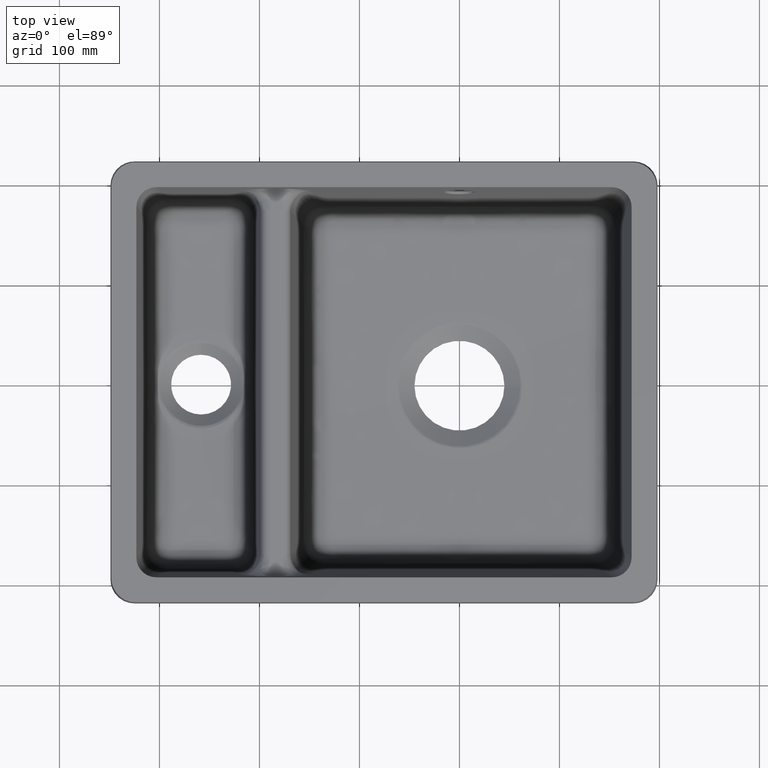
[diagram: clean part render]
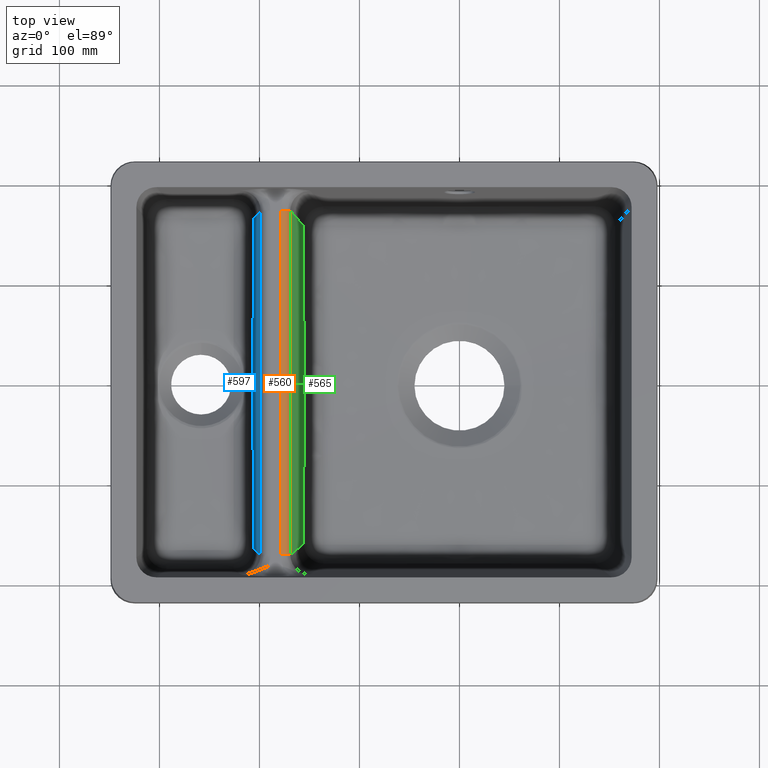
[diagram: same view with three faces highlighted in distinct colors, each labeled with its STEP entity id]
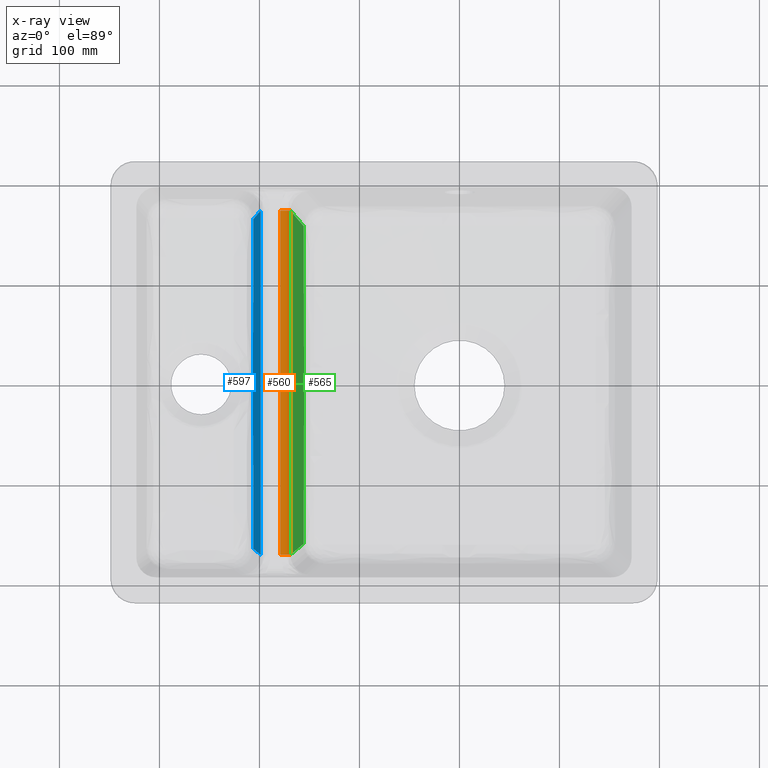
[diagram: x-ray of the same camera — body ghosted, the three highlighted faces saturated]
A machine part, top view with three faces highlighted in distinct colors.
The next image is the same camera in x-ray (body ghosted, the three faces saturated) — at least one of them is partly hidden behind the body in this view.
Their STEP definitions:

[orange] entity #560 — the highlighted cylindrical surface (edge-blend (fillet) strip) has radius 10 mm, axis along (-0, 1, 0).
#163=CYLINDRICAL_SURFACE('',#3065,10.);
#267=FACE_OUTER_BOUND('',#832,.T.);
#432=CIRCLE('',#3063,10.);
#433=CIRCLE('',#3064,10.);
#560=ADVANCED_FACE('',(#267),#163,.T.);
#832=EDGE_LOOP('',(#1576,#1577,#1578,#1579));
#1576=ORIENTED_EDGE('',*,*,#2530,.T.);
#1577=ORIENTED_EDGE('',*,*,#2531,.F.);
#1578=ORIENTED_EDGE('',*,*,#2529,.F.);
#1579=ORIENTED_EDGE('',*,*,#2532,.F.);
#2184=VERTEX_POINT('',#6945);
#2185=VERTEX_POINT('',#6964);
#2186=VERTEX_POINT('',#6997);
#2187=VERTEX_POINT('',#6998);
#2529=EDGE_CURVE('',#2185,#2184,#432,.T.);
#2530=EDGE_CURVE('',#2186,#2187,#433,.T.);
#2531=EDGE_CURVE('',#2184,#2187,#2744,.T.);
#2532=EDGE_CURVE('',#2186,#2185,#2745,.T.);
#2744=LINE('',#6999,#2845);
#2745=LINE('',#7000,#2846);
#2845=VECTOR('',#3555,1.);
#2846=VECTOR('',#3556,1.);
#3063=AXIS2_PLACEMENT_3D('',#6965,#3551,#3552);
#3064=AXIS2_PLACEMENT_3D('',#6996,#3553,#3554);
#3065=AXIS2_PLACEMENT_3D('',#7001,#3557,#3558);
#3551=DIRECTION('',(1.00279731386977E-16,-1.,-9.54097911787244E-16));
#3552=DIRECTION('',(0.,0.,-1.));
#3553=DIRECTION('',(8.32841762506067E-17,-1.,-7.92396006117978E-16));
#3554=DIRECTION('',(0.,0.,1.));
#3555=DIRECTION('',(-8.32841762506067E-17,1.,7.92396006117978E-16));
#3556=DIRECTION('',(8.32841762506067E-17,-1.,-7.92396006117978E-16));
#3557=DIRECTION('',(-8.32841762506067E-17,1.,7.92396006117978E-16));
#3558=DIRECTION('',(0.,0.,-1.));
#6945=CARTESIAN_POINT('',(-178.952998090303,-172.066298876616,-21.0000000000022));
#6964=CARTESIAN_POINT('',(-169.00777913662,-172.066298876616,-29.9547153673256));
#6965=CARTESIAN_POINT('',(-178.952998090303,-172.066298876616,-31.0000000000022));
#6996=CARTESIAN_POINT('',(-178.952998090303,172.066298876616,-31.0000000000019));
#6997=CARTESIAN_POINT('',(-169.00777913662,172.066298876616,-29.9547153673253));
#6998=CARTESIAN_POINT('',(-178.952998090303,172.066298876616,-21.0000000000019));
#6999=CARTESIAN_POINT('',(-178.952998090303,-183.893874851707,-21.0000000000022));
#7000=CARTESIAN_POINT('',(-169.00777913662,172.066298876616,-29.9547153673254));
#7001=CARTESIAN_POINT('',(-178.952998090303,-183.893874851707,-31.0000000000022));

[blue] entity #597 — the highlighted planar face has unit normal (-0.9945, 0, 0.1045).
#304=FACE_OUTER_BOUND('',#869,.T.);
#597=ADVANCED_FACE('',(#304),#671,.T.);
#671=PLANE('',#3103);
#869=EDGE_LOOP('',(#1724,#1725,#1726,#1727,#1728,#1729,#1730));
#1057=B_SPLINE_CURVE_WITH_KNOTS('',3,(#7946,#7947,#7948,#7949,#7950,#7951),
 .UNSPECIFIED.,.F.,.F.,(4,2,4),(0.,0.5,1.),.UNSPECIFIED.);
#1059=B_SPLINE_CURVE_WITH_KNOTS('',3,(#8023,#8024,#8025,#8026,#8027,#8028,
#8029,#8030,#8031,#8032,#8033,#8034,#8035,#8036,#8037,#8038,#8039,#8040,
#8041,#8042,#8043,#8044,#8045),.UNSPECIFIED.,.F.,.F.,(4,1,1,1,1,2,2,2,2,
1,1,1,2,2,4),(0.,0.125000000000001,0.187500000000001,0.218750000000002,
0.234375000000002,0.242187500000002,0.250000000000002,0.375000000000001,
0.500000000000001,0.625,0.6875,0.71875,0.734375,0.75,1.),.UNSPECIFIED.);
#1062=B_SPLINE_CURVE_WITH_KNOTS('',3,(#8126,#8127,#8128,#8129,#8130,#8131,
#8132,#8133,#8134,#8135,#8136,#8137,#8138,#8139,#8140,#8141,#8142,#8143,
#8144,#8145,#8146,#8147,#8148),.UNSPECIFIED.,.F.,.F.,(4,1,1,1,2,2,2,2,1,
1,1,1,2,2,4),(0.,0.125,0.1875,0.218750000000001,0.234375000000001,0.250000000000001,
0.375000000000001,0.5,0.625,0.6875,0.71875,0.734375,0.7421875,0.75,1.),
 .UNSPECIFIED.);
#1066=B_SPLINE_CURVE_WITH_KNOTS('',3,(#8329,#8330,#8331,#8332,#8333,#8334),
 .UNSPECIFIED.,.F.,.F.,(4,2,4),(0.,0.5,1.),.UNSPECIFIED.);
#1073=B_SPLINE_CURVE_WITH_KNOTS('',3,(#8528,#8529,#8530,#8531),
 .UNSPECIFIED.,.F.,.F.,(4,4),(0.,1.),.UNSPECIFIED.);
#1724=ORIENTED_EDGE('',*,*,#2619,.T.);
#1725=ORIENTED_EDGE('',*,*,#2540,.T.);
#1726=ORIENTED_EDGE('',*,*,#2611,.F.);
#1727=ORIENTED_EDGE('',*,*,#2603,.T.);
#1728=ORIENTED_EDGE('',*,*,#2598,.T.);
#1729=ORIENTED_EDGE('',*,*,#2594,.T.);
#1730=ORIENTED_EDGE('',*,*,#2590,.T.);
#2189=VERTEX_POINT('',#7071);
#2190=VERTEX_POINT('',#7104);
#2217=VERTEX_POINT('',#7728);
#2219=VERTEX_POINT('',#7903);
#2221=VERTEX_POINT('',#8022);
#2223=VERTEX_POINT('',#8125);
#2227=VERTEX_POINT('',#8335);
#2540=EDGE_CURVE('',#2190,#2189,#2747,.T.);
#2590=EDGE_CURVE('',#2219,#2217,#1057,.T.);
#2594=EDGE_CURVE('',#2221,#2219,#1059,.T.);
#2598=EDGE_CURVE('',#2223,#2221,#1062,.T.);
#2603=EDGE_CURVE('',#2227,#2223,#1066,.T.);
#2611=EDGE_CURVE('',#2227,#2189,#2751,.T.);
#2619=EDGE_CURVE('',#2217,#2190,#1073,.T.);
#2747=LINE('',#7107,#2848);
#2751=LINE('',#8492,#2852);
#2848=VECTOR('',#3568,1.);
#2852=VECTOR('',#3630,1.);
#3103=AXIS2_PLACEMENT_3D('',#8532,#3644,#3645);
#3568=DIRECTION('',(2.20147362455929E-15,1.,7.92396006117978E-16));
#3630=DIRECTION('',(0.103962051184498,0.103962051184498,0.989132844377854));
#3644=DIRECTION('',(-0.994521895368273,2.10658578488103E-15,0.104528463267654));
#3645=DIRECTION('',(0.104528463267654,0.,0.994521895368273));
#7071=CARTESIAN_POINT('',(-198.89013615809,172.066298876615,-29.9547153673254));
#7104=CARTESIAN_POINT('',(-198.890136158091,-172.066298876615,-29.9547153673256));
#7107=CARTESIAN_POINT('',(-198.89013615809,172.066298876615,-29.9547153673254));
#7728=CARTESIAN_POINT('',(-205.908140365962,-165.048294668744,-96.7265651422782));
#7903=CARTESIAN_POINT('',(-206.48830161595,-26.9330357523797,-102.246430716801));
#7946=CARTESIAN_POINT('',(-206.488301616006,-26.9330357353728,-102.246430717416));
#7947=CARTESIAN_POINT('',(-206.419970218324,-49.9625509888245,-101.596300896209));
#7948=CARTESIAN_POINT('',(-206.315696955668,-72.9790688366397,-100.604207072467));
#7949=CARTESIAN_POINT('',(-206.11514034231,-119.014993868334,-98.6960383592714));
#7950=CARTESIAN_POINT('',(-206.01185852997,-142.031733128513,-97.7133775551774));
#7951=CARTESIAN_POINT('',(-205.908140365962,-165.048294668744,-96.7265651422782));
#8022=CARTESIAN_POINT('',(-206.836535982037,-2.09999420602391E-9,-105.559659391275));
#8023=CARTESIAN_POINT('',(-206.836535982021,6.38378239159465E-12,-105.559659391169));
#8024=CARTESIAN_POINT('',(-206.836533466826,-1.05212595363844,-105.559635460691));
#8025=CARTESIAN_POINT('',(-206.830155342078,-2.6890971019836,-105.498951657302));
#8026=CARTESIAN_POINT('',(-206.811559080615,-4.70176565633934,-105.322020048255));
#8027=CARTESIAN_POINT('',(-206.799472170902,-5.73381715383881,-105.207020784124));
#8028=CARTESIAN_POINT('',(-206.792731521301,-6.25627220766888,-105.142887787157));
#8029=CARTESIAN_POINT('',(-206.789693272598,-6.48155922468475,-105.113980781693));
#8030=CARTESIAN_POINT('',(-206.787634573712,-6.63205672674676,-105.094393570197));
#8031=CARTESIAN_POINT('',(-206.786168654827,-6.73732142063944,-105.080446283665));
#8032=CARTESIAN_POINT('',(-206.775244801203,-7.51408617283033,-104.976512759041));
#8033=CARTESIAN_POINT('',(-206.760353417531,-8.43785398856813,-104.834830707553));
#8034=CARTESIAN_POINT('',(-206.721350430839,-10.6707798356306,-104.463742077366));
#8035=CARTESIAN_POINT('',(-206.696387233361,-12.0244675864958,-104.226233118619));
#8036=CARTESIAN_POINT('',(-206.640646996894,-14.9391144256506,-103.6959001941));
#8037=CARTESIAN_POINT('',(-206.605050143118,-16.8692825924454,-103.35721875386));
#8038=CARTESIAN_POINT('',(-206.574385046638,-18.673465769206,-103.065459849924));
#8039=CARTESIAN_POINT('',(-206.561768639963,-19.4636374364614,-102.945422758709));
#8040=CARTESIAN_POINT('',(-206.556943638866,-19.7782995964726,-102.899515939778));
#8041=CARTESIAN_POINT('',(-206.553856311542,-19.9827448497598,-102.870141982431));
#8042=CARTESIAN_POINT('',(-206.553191657318,-20.0265135921146,-102.86381821991));
#8043=CARTESIAN_POINT('',(-206.51530438652,-22.6221115166011,-102.503344917361));
#8044=CARTESIAN_POINT('',(-206.494417260412,-24.8733914874031,-102.304617187168));
#8045=CARTESIAN_POINT('',(-206.488301616006,-26.9330357353728,-102.246430717416));
#8125=CARTESIAN_POINT('',(-206.488301616006,26.9330357353727,-102.246430717416));
#8126=CARTESIAN_POINT('',(-206.488301616006,26.9330357353727,-102.246430717416));
#8127=CARTESIAN_POINT('',(-206.491358858401,25.903409801235,-102.275518435789));
#8128=CARTESIAN_POINT('',(-206.501484462488,24.286960361581,-102.37185712339));
#8129=CARTESIAN_POINT('',(-206.52299221312,22.2750842397015,-102.576489701501));
#8130=CARTESIAN_POINT('',(-206.536169724903,21.237641568191,-102.7018653512));
#8131=CARTESIAN_POINT('',(-206.542336580624,20.7862722924213,-102.760539064066));
#8132=CARTESIAN_POINT('',(-206.546563229032,20.4838592223572,-102.800752937436));
#8133=CARTESIAN_POINT('',(-206.549549445754,20.2760482394406,-102.829164891676));
#8134=CARTESIAN_POINT('',(-206.562271382932,19.4043764911747,-102.950206038548));
#8135=CARTESIAN_POINT('',(-206.577721753967,18.4588497572042,-103.097206499522));
#8136=CARTESIAN_POINT('',(-206.616906460899,16.2263814849064,-103.470024082311));
#8137=CARTESIAN_POINT('',(-206.639799518693,14.9834302656216,-103.687836977636));
#8138=CARTESIAN_POINT('',(-206.697234711562,11.9801517465247,-104.234296335085));
#8139=CARTESIAN_POINT('',(-206.733399028897,10.0165751092149,-104.578376830448));
#8140=CARTESIAN_POINT('',(-206.763494597151,8.23127964004285,-104.864717035274));
#8141=CARTESIAN_POINT('',(-206.775518347452,7.46501789071249,-104.979115377746));
#8142=CARTESIAN_POINT('',(-206.780774214146,7.11348351236123,-105.029121608996));
#8143=CARTESIAN_POINT('',(-206.782864726631,6.9695965994208,-105.049011506678));
#8144=CARTESIAN_POINT('',(-206.784222401219,6.87517658585642,-105.061928917514));
#8145=CARTESIAN_POINT('',(-206.784463526224,6.85856021588611,-105.064223068689));
#8146=CARTESIAN_POINT('',(-206.819527642522,4.36551743287874,-105.397835850413));
#8147=CARTESIAN_POINT('',(-206.836530944794,2.1045129445813,-105.559611465161));
#8148=CARTESIAN_POINT('',(-206.836535982021,-6.43929354282591E-12,-105.559659391169));
#8329=CARTESIAN_POINT('',(-205.908140365961,165.048294668744,-96.7265651422782));
#8330=CARTESIAN_POINT('',(-206.01185852997,142.031733128513,-97.7133775551773));
#8331=CARTESIAN_POINT('',(-206.11514034231,119.014993868334,-98.6960383592714));
#8332=CARTESIAN_POINT('',(-206.315696955668,72.9790688366396,-100.604207072467));
#8333=CARTESIAN_POINT('',(-206.419970218324,49.9625509888244,-101.596300896209));
#8334=CARTESIAN_POINT('',(-206.488301616006,26.9330357353727,-102.246430717416));
#8335=CARTESIAN_POINT('',(-205.908140365961,165.048294668744,-96.7265651422782));
#8492=CARTESIAN_POINT('',(-198.89013615809,172.066298876615,-29.9547153673254));
#8528=CARTESIAN_POINT('',(-205.908140365962,-165.048294668744,-96.7265651422782));
#8529=CARTESIAN_POINT('',(-203.568805630005,-167.387629404701,-74.4692818839607));
#8530=CARTESIAN_POINT('',(-201.229470894048,-169.726964140658,-52.2119986256432));
#8531=CARTESIAN_POINT('',(-198.890136158091,-172.066298876615,-29.9547153673257));
#8532=CARTESIAN_POINT('',(-198.89013615809,172.066298876615,-29.9547153673254));

[green] entity #565 — the highlighted planar face has unit normal (0.9945, 0, 0.1045).
#272=FACE_OUTER_BOUND('',#837,.T.);
#565=ADVANCED_FACE('',(#272),#670,.T.);
#670=PLANE('',#3072);
#837=EDGE_LOOP('',(#1596,#1597,#1598,#1599));
#1015=B_SPLINE_CURVE_WITH_KNOTS('',3,(#6574,#6575,#6576,#6577,#6578,#6579),
 .UNSPECIFIED.,.F.,.F.,(4,2,4),(0.,0.5,1.),.UNSPECIFIED.);
#1030=B_SPLINE_CURVE_WITH_KNOTS('',3,(#7158,#7159,#7160,#7161),
 .UNSPECIFIED.,.F.,.F.,(4,4),(0.,1.),.UNSPECIFIED.);
#1596=ORIENTED_EDGE('',*,*,#2543,.T.);
#1597=ORIENTED_EDGE('',*,*,#2532,.T.);
#1598=ORIENTED_EDGE('',*,*,#2544,.T.);
#1599=ORIENTED_EDGE('',*,*,#2502,.F.);
#2167=VERTEX_POINT('',#6571);
#2168=VERTEX_POINT('',#6580);
#2185=VERTEX_POINT('',#6964);
#2186=VERTEX_POINT('',#6997);
#2502=EDGE_CURVE('',#2167,#2168,#1015,.T.);
#2532=EDGE_CURVE('',#2186,#2185,#2745,.T.);
#2543=EDGE_CURVE('',#2167,#2186,#1030,.T.);
#2544=EDGE_CURVE('',#2185,#2168,#2748,.T.);
#2745=LINE('',#7000,#2846);
#2748=LINE('',#7162,#2849);
#2846=VECTOR('',#3556,1.);
#2849=VECTOR('',#3573,1.);
#3072=AXIS2_PLACEMENT_3D('',#7163,#3574,#3575);
#3556=DIRECTION('',(8.32841762506067E-17,-1.,-7.92396006117978E-16));
#3573=DIRECTION('',(0.103962051184498,0.103962051184497,-0.989132844377854));
#3574=DIRECTION('',(0.994521895368273,0.,0.104528463267654));
#3575=DIRECTION('',(0.104528463267654,0.,-0.994521895368273));
#6571=CARTESIAN_POINT('',(-155.793988518977,158.852508258973,-155.675535125369));
#6574=CARTESIAN_POINT('',(-155.793980085049,158.852499825044,-155.675615368839));
#6575=CARTESIAN_POINT('',(-155.608812912389,105.908209610742,-157.437363334484));
#6576=CARTESIAN_POINT('',(-155.456766744412,52.9627490337808,-158.883985990481));
#6577=CARTESIAN_POINT('',(-155.456723829204,-52.9389159997982,-158.884394301415));
#6578=CARTESIAN_POINT('',(-155.608767139377,-105.895121871883,-157.437798835597));
#6579=CARTESIAN_POINT('',(-155.793980085049,-158.852499825044,-155.675615368839));
#6580=CARTESIAN_POINT('',(-155.793980111557,-158.852499851553,-155.675615116623));
#6964=CARTESIAN_POINT('',(-169.00777913662,-172.066298876616,-29.9547153673256));
#6997=CARTESIAN_POINT('',(-169.00777913662,172.066298876616,-29.9547153673253));
#7000=CARTESIAN_POINT('',(-169.00777913662,172.066298876616,-29.9547153673254));
#7158=CARTESIAN_POINT('',(-155.793980085049,158.852499825044,-155.675615368839));
#7159=CARTESIAN_POINT('',(-160.198579768906,163.257099508901,-113.768648701668));
#7160=CARTESIAN_POINT('',(-164.603179452763,167.661699192758,-71.8616820344966));
#7161=CARTESIAN_POINT('',(-169.00777913662,172.066298876616,-29.9547153673253));
#7162=CARTESIAN_POINT('',(-157.374301051765,-160.432820791761,-140.639865736848));
#7163=CARTESIAN_POINT('',(-155.456745284393,172.066298876616,-158.884190168921));